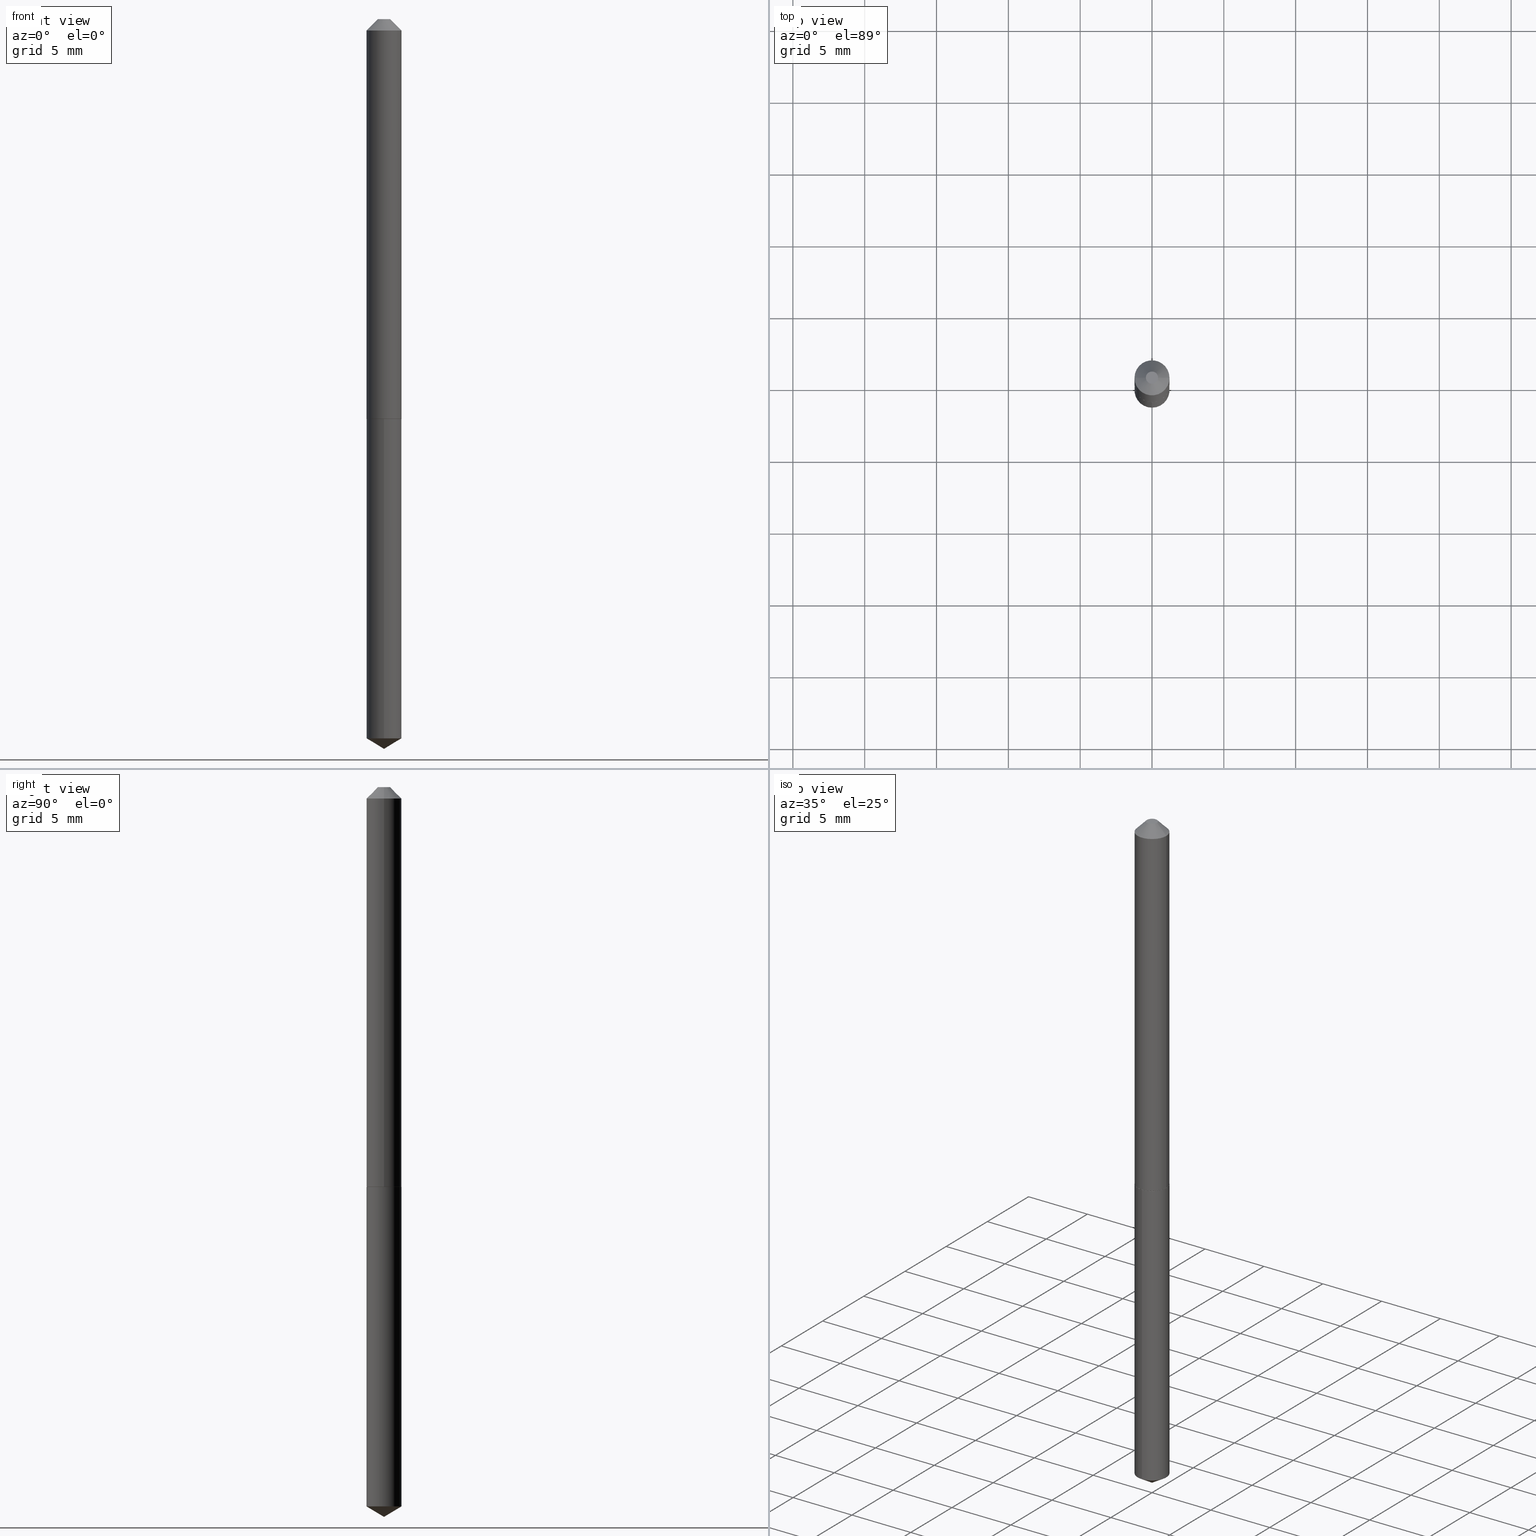
[diagram: canonical four-view strip — front | top / right | iso, engineering-drawing reading convention]
A machine part, canonical four-view strip (front | top / right | iso — engineering-drawing reading convention). The complete STEP part file that produces these views, byte-faithful:
ISO-10303-21;
HEADER;
FILE_DESCRIPTION (( 'STEP AP203' ),
    '1' );
FILE_NAME ('51041.STEP',
    '2024-04-22T18:17:20',
    ( '' ),
    ( '' ),
    'SwSTEP 2.0',
    'SolidWorks 2023',
    '' );
FILE_SCHEMA (( 'CONFIG_CONTROL_DESIGN' ));
ENDSEC;

DATA;
#1 = ORIENTED_EDGE ( 'NONE', *, *, #66, .F. ) ;
#2 = EDGE_LOOP ( 'NONE', ( #107, #1 ) ) ;
#3 = AXIS2_PLACEMENT_3D ( 'NONE', #137, #255, #256 ) ;
#4 = CC_DESIGN_PERSON_AND_ORGANIZATION_ASSIGNMENT ( #359, #218, ( #208 ) ) ;
#5 = VERTEX_POINT ( 'NONE', #220 ) ;
#6 = VERTEX_POINT ( 'NONE', #305 ) ;
#7 = CARTESIAN_POINT ( 'NONE',  ( 4.890904656076488180E-29, -6.983009872974747013E-15, -2.000000000000000000 ) ) ;
#8 = ORIENTED_EDGE ( 'NONE', *, *, #355, .T. ) ;
#9 = LINE ( 'NONE', #278, #253 ) ;
#10 = ORIENTED_EDGE ( 'NONE', *, *, #54, .F. ) ;
#11 = EDGE_CURVE ( 'NONE', #342, #301, #97, .T. ) ;
#12 = EDGE_CURVE ( 'NONE', #5, #192, #240, .T. ) ;
#13 = DIRECTION ( 'NONE',  ( 0.7071067811865897612, -2.468850131082699217E-15, 0.7071067811865052732 ) ) ;
#14 = ADVANCED_FACE ( 'NONE', ( #251 ), #271, .T. ) ;
#15 = PRODUCT ( '51041', '51041', '', ( #153 ) ) ;
#16 = DIRECTION ( 'NONE',  ( -6.982962677686264344E-15, -1.000000000000000000, 3.468864327941585142E-15 ) ) ;
#17 = CARTESIAN_POINT ( 'NONE',  ( -0.04800000000000000794, -1.625952786105907668E-15, -0.03125000000000020123 ) ) ;
#18 =( LENGTH_UNIT ( ) NAMED_UNIT ( * ) SI_UNIT ( $, .METRE. ) );
#19 = CARTESIAN_POINT ( 'NONE',  ( -9.138672799404161361E-28, 1.304778402611997727E-13, 37.37007874015748143 ) ) ;
#20 = VECTOR ( 'NONE', #337, 39.37007874015748143 ) ;
#21 = FACE_OUTER_BOUND ( 'NONE', #2, .T. ) ;
#22 = DIMENSIONAL_EXPONENTS ( 1.000000000000000000, 0.000000000000000000, 0.000000000000000000, 0.000000000000000000, 0.000000000000000000, 0.000000000000000000, 0.000000000000000000 ) ;
#23 = PERSON_AND_ORGANIZATION_ROLE ( 'design_owner' ) ;
#24 = CC_DESIGN_DATE_AND_TIME_ASSIGNMENT ( #84, #168, ( #323 ) ) ;
#25 = EDGE_CURVE ( 'NONE', #6, #5, #221, .T. ) ;
#26 = ADVANCED_FACE ( 'NONE', ( #79 ), #223, .T. ) ;
#27 = AXIS2_PLACEMENT_3D ( 'NONE', #382, #82, #202 ) ;
#28 = LOCAL_TIME ( 14, 17, 20.00000000000000000, #326 ) ;
#29 = CALENDAR_DATE ( 2024, 22, 4 ) ;
#30 = COORDINATED_UNIVERSAL_TIME_OFFSET ( 5, 0, .BEHIND. ) ;
#31 = APPLICATION_PROTOCOL_DEFINITION ( 'international standard', 'config_control_design', 1994, #181 ) ;
#32 = AXIS2_PLACEMENT_3D ( 'NONE', #250, #276, #371 ) ;
#33 = ORIENTED_EDGE ( 'NONE', *, *, #52, .T. ) ;
#34 = DIRECTION ( 'NONE',  ( -1.000000000000000000, 6.982962677686266711E-15, 0.000000000000000000 ) ) ;
#35 = CC_DESIGN_PERSON_AND_ORGANIZATION_ASSIGNMENT ( #267, #388, ( #208 ) ) ;
#36 = ADVANCED_FACE ( 'NONE', ( #335 ), #91, .T. ) ;
#37 = PERSON_AND_ORGANIZATION ( #49, #236 ) ;
#38 = ORIENTED_EDGE ( 'NONE', *, *, #11, .F. ) ;
#39 = DIRECTION ( 'NONE',  ( 1.000000000000000000, -6.982962677686265133E-15, 0.000000000000000000 ) ) ;
#40 = AXIS2_PLACEMENT_3D ( 'NONE', #19, #45, #16 ) ;
#41 = LOCAL_TIME ( 14, 17, 20.00000000000000000, #331 ) ;
#42 = LINE ( 'NONE', #169, #339 ) ;
#43 = CARTESIAN_POINT ( 'NONE',  ( 2.679011077175817397E-29, -3.824917806702665780E-15, -1.095499999999999918 ) ) ;
#44 = ADVANCED_FACE ( 'NONE', ( #316 ), #114, .T. ) ;
#45 = DIRECTION ( 'NONE',  ( -2.445452328038244090E-29, 3.491504936487373507E-15, 1.000000000000000000 ) ) ;
#46 = CARTESIAN_POINT ( 'NONE',  ( 0.04800000000000013284, -4.160100015231607087E-15, -1.095499999999999918 ) ) ;
#47 = CLOSED_SHELL ( 'NONE', ( #26, #124, #44, #154, #212 ) ) ;
#48 = CONICAL_SURFACE ( 'NONE', #40, 65.52281426576860213, 1.029744258676655644 ) ;
#49 = PERSON ( 'UNSPECIFIED', 'UNSPECIFIED', 'UNSPECIFIED', ('UNSPECIFIED'), ('UNSPECIFIED'), ('UNSPECIFIED') ) ;
#50 = APPROVAL_PERSON_ORGANIZATION ( #120, #112, #121 ) ;
#51 = CYLINDRICAL_SURFACE ( 'NONE', #319, 0.04800000000000007733 ) ;
#52 = EDGE_CURVE ( 'NONE', #254, #332, #191, .T. ) ;
#53 = DIRECTION ( 'NONE',  ( 1.000000000000000000, 0.000000000000000000, 0.000000000000000000 ) ) ;
#54 = EDGE_CURVE ( 'NONE', #332, #301, #211, .T. ) ;
#55 = DIRECTION ( 'NONE',  ( -2.445468806185136597E-29, 3.491481338843145583E-15, 1.000000000000000000 ) ) ;
#56 = CARTESIAN_POINT ( 'NONE',  ( -9.138672799404161361E-28, 1.304778402611997727E-13, 37.37007874015748143 ) ) ;
#57 = AXIS2_PLACEMENT_3D ( 'NONE', #282, #311, #320 ) ;
#58 = CARTESIAN_POINT ( 'NONE',  ( -0.04800000000000007733, 3.410605131648486387E-16, -2.361088843322358304E-30 ) ) ;
#59 = DIRECTION ( 'NONE',  ( -6.982962677686264344E-15, -1.000000000000000000, 3.468864327941585142E-15 ) ) ;
#60 = MANIFOLD_SOLID_BREP ( 'Body-Move/Copy2[1]', #47 ) ;
#61 = CALENDAR_DATE ( 2024, 22, 4 ) ;
#62 = ORIENTED_EDGE ( 'NONE', *, *, #344, .T. ) ;
#63 = DIRECTION ( 'NONE',  ( -1.000000000000000000, 6.982962677686265922E-15, -4.876176775795935793E-29 ) ) ;
#64 = CIRCLE ( 'NONE', #280, 0.04800000000000000794 ) ;
#65 = PERSON_AND_ORGANIZATION_ROLE ( 'classification_officer' ) ;
#66 = EDGE_CURVE ( 'NONE', #101, #132, #257, .T. ) ;
#67 = DIRECTION ( 'NONE',  ( -2.445468806185136597E-29, 3.491481338843145583E-15, 1.000000000000000000 ) ) ;
#68 = CALENDAR_DATE ( 2024, 22, 4 ) ;
#69 = ORIENTED_EDGE ( 'NONE', *, *, #377, .T. ) ;
#70 = ORIENTED_EDGE ( 'NONE', *, *, #324, .F. ) ;
#71 = ORIENTED_EDGE ( 'NONE', *, *, #249, .F. ) ;
#72 = CARTESIAN_POINT ( 'NONE',  ( -0.04750000000000004219, -3.486506520711928195E-15, -1.096000000000000085 ) ) ;
#73 = CC_DESIGN_APPROVAL ( #112, ( #323 ) ) ;
#74 = LINE ( 'NONE', #281, #20 ) ;
#75 = CIRCLE ( 'NONE', #32, 0.04800000000000000100 ) ;
#76 = EDGE_CURVE ( 'NONE', #157, #187, #372, .T. ) ;
#77 = ORIENTED_EDGE ( 'NONE', *, *, #324, .T. ) ;
#78 = PLANE ( 'NONE',  #3 ) ;
#79 = FACE_OUTER_BOUND ( 'NONE', #134, .T. ) ;
#80 = CARTESIAN_POINT ( 'NONE',  ( 0.000000000000000000, 0.000000000000000000, 0.000000000000000000 ) ) ;
#81 = CALENDAR_DATE ( 2024, 22, 4 ) ;
#82 = DIRECTION ( 'NONE',  ( -2.445468806185136597E-29, 3.491481338843145583E-15, 1.000000000000000000 ) ) ;
#83 = CC_DESIGN_APPROVAL ( #204, ( #338 ) ) ;
#84 = DATE_AND_TIME ( #81, #28 ) ;
#85 = CC_DESIGN_PERSON_AND_ORGANIZATION_ASSIGNMENT ( #235, #23, ( #15 ) ) ;
#86 = EDGE_CURVE ( 'NONE', #187, #342, #87, .T. ) ;
#87 = LINE ( 'NONE', #150, #380 ) ;
#88 = CARTESIAN_POINT ( 'NONE',  ( 2.679011077175817397E-29, -3.824917806702665780E-15, -1.095499999999999918 ) ) ;
#89 = APPROVAL_STATUS ( 'not_yet_approved' ) ;
#90 = CARTESIAN_POINT ( 'NONE',  ( 3.410605131648963647E-16, 0.04799999999999617073, -1.096000000000000085 ) ) ;
#91 = CONICAL_SURFACE ( 'NONE', #313, 0.04800000000000013284, 0.7853981633975080090 ) ;
#92 = CARTESIAN_POINT ( 'NONE',  ( 0.04800000000000007733, -3.351822085289413070E-16, 2.340564852382052838E-30 ) ) ;
#93 = EDGE_LOOP ( 'NONE', ( #69, #225, #182, #10 ) ) ;
#94 = PLANE ( 'NONE',  #237 ) ;
#95 = PERSON_AND_ORGANIZATION ( #49, #236 ) ;
#96 = EDGE_CURVE ( 'NONE', #254, #342, #354, .T. ) ;
#97 = CIRCLE ( 'NONE', #308, 0.04800000000000000794 ) ;
#98 = VECTOR ( 'NONE', #102, 39.37007874015748143 ) ;
#99 = DATE_AND_TIME ( #68, #41 ) ;
#100 = ORIENTED_EDGE ( 'NONE', *, *, #232, .T. ) ;
#101 = VERTEX_POINT ( 'NONE', #72 ) ;
#102 = DIRECTION ( 'NONE',  ( 0.7071067811865453523, -7.319954787623248157E-15, -0.7071067811865496822 ) ) ;
#103 = ORIENTED_EDGE ( 'NONE', *, *, #25, .F. ) ;
#104 = EDGE_LOOP ( 'NONE', ( #200, #390, #244, #325 ) ) ;
#105 = LINE ( 'NONE', #7, #138 ) ;
#106 = DIRECTION ( 'NONE',  ( -6.982962677686265922E-15, -1.000000000000000000, 5.691349986800547879E-15 ) ) ;
#107 = ORIENTED_EDGE ( 'NONE', *, *, #222, .F. ) ;
#108 = DIRECTION ( 'NONE',  ( -0.7071067811865897612, 7.493145998870507199E-15, 0.7071067811865052732 ) ) ;
#109 = FACE_OUTER_BOUND ( 'NONE', #215, .T. ) ;
#110 = DIRECTION ( 'NONE',  ( -2.445452328038244090E-29, 3.491504936487373507E-15, 1.000000000000000000 ) ) ;
#111 = DESIGN_CONTEXT ( 'detailed design', #263, 'design' ) ;
#112 = APPROVAL ( #352, 'UNSPECIFIED' ) ;
#113 = DIRECTION ( 'NONE',  ( -2.445468806185136597E-29, 3.491481338843145583E-15, 1.000000000000000000 ) ) ;
#114 = CONICAL_SURFACE ( 'NONE', #228, 65.52281426576860213, 1.029744258676655644 ) ;
#115 = DIRECTION ( 'NONE',  ( -1.000000000000000000, 6.982962677686266711E-15, 0.000000000000000000 ) ) ;
#116 = ADVANCED_FACE ( 'NONE', ( #155 ), #94, .F. ) ;
#117 = DIRECTION ( 'NONE',  ( 2.445468806185136597E-29, -3.491481338843145583E-15, -1.000000000000000000 ) ) ;
#118 = CIRCLE ( 'NONE', #309, 0.04800000000000013284 ) ;
#119 = DIRECTION ( 'NONE',  ( -6.982962677686265922E-15, -1.000000000000000000, 2.845674993400273939E-15 ) ) ;
#120 = PERSON_AND_ORGANIZATION ( #49, #236 ) ;
#121 = APPROVAL_ROLE ( '' ) ;
#122 = APPROVAL_DATE_TIME ( #151, #112 ) ;
#123 = ADVANCED_FACE ( 'NONE', ( #379 ), #302, .T. ) ;
#124 = ADVANCED_FACE ( 'NONE', ( #224 ), #48, .T. ) ;
#125 = SECURITY_CLASSIFICATION_LEVEL ( 'unclassified' ) ;
#126 = APPROVAL_ROLE ( '' ) ;
#127 = AXIS2_PLACEMENT_3D ( 'NONE', #384, #149, #53 ) ;
#128 = DIRECTION ( 'NONE',  ( -2.445452328038244090E-29, 3.491504936487373507E-15, 1.000000000000000000 ) ) ;
#129 = DIRECTION ( 'NONE',  ( 2.438088387897960049E-29, -3.491481338843145188E-15, -1.000000000000000000 ) ) ;
#130 = CONICAL_SURFACE ( 'NONE', #361, 0.04800000000000000794, 0.7853981633974452814 ) ;
#131 = EDGE_LOOP ( 'NONE', ( #300, #272 ) ) ;
#132 = VERTEX_POINT ( 'NONE', #205 ) ;
#133 = ORIENTED_EDGE ( 'NONE', *, *, #76, .F. ) ;
#134 = EDGE_LOOP ( 'NONE', ( #340, #214, #184, #70 ) ) ;
#135 = ORIENTED_EDGE ( 'NONE', *, *, #86, .T. ) ;
#136 = CARTESIAN_POINT ( 'NONE',  ( 3.410605131648748190E-16, 0.04799999999999617073, -1.096000000000000085 ) ) ;
#137 = CARTESIAN_POINT ( 'NONE',  ( 2.680233811578909638E-29, -3.826663547372087284E-15, -1.096000000000000085 ) ) ;
#138 = VECTOR ( 'NONE', #226, 39.37007874015748143 ) ;
#139 = CARTESIAN_POINT ( 'NONE',  ( 7.642090019328601786E-31, -1.091087918388490144E-16, -0.03125000000000020123 ) ) ;
#140 = UNCERTAINTY_MEASURE_WITH_UNIT (LENGTH_MEASURE( 1.000000000000000082E-05 ), #347, 'distance_accuracy_value', 'NONE');
#141 = AXIS2_PLACEMENT_3D ( 'NONE', #207, #231, #349 ) ;
#142 = ADVANCED_FACE ( 'NONE', ( #348 ), #130, .T. ) ;
#143 = CC_DESIGN_PERSON_AND_ORGANIZATION_ASSIGNMENT ( #356, #180, ( #323 ) ) ;
#144 = CARTESIAN_POINT ( 'NONE',  ( 2.679011077175817397E-29, -3.824917806702665780E-15, -1.095499999999999918 ) ) ;
#145 = DIRECTION ( 'NONE',  ( -2.445452328038244090E-29, 3.491504936487373507E-15, 1.000000000000000000 ) ) ;
#146 = VECTOR ( 'NONE', #328, 39.37007874015748143 ) ;
#147 = AXIS2_PLACEMENT_3D ( 'NONE', #360, #296, #34 ) ;
#148 = CIRCLE ( 'NONE', #350, 0.04750000000000004219 ) ;
#149 = DIRECTION ( 'NONE',  ( 0.000000000000000000, 0.000000000000000000, 1.000000000000000000 ) ) ;
#150 = CARTESIAN_POINT ( 'NONE',  ( -0.04800000000000000794, 2.260734166900918612E-16, -0.03125000000000020123 ) ) ;
#151 = DATE_AND_TIME ( #29, #193 ) ;
#152 = AXIS2_PLACEMENT_3D ( 'NONE', #291, #264, #358 ) ;
#153 = MECHANICAL_CONTEXT ( 'NONE', #181, 'mechanical' ) ;
#154 = ADVANCED_FACE ( 'NONE', ( #174 ), #230, .T. ) ;
#155 = FACE_OUTER_BOUND ( 'NONE', #131, .T. ) ;
#156 = ADVANCED_FACE ( 'NONE', ( #21 ), #233, .F. ) ;
#157 = VERTEX_POINT ( 'NONE', #351 ) ;
#158 = EDGE_LOOP ( 'NONE', ( #367, #336, #135, #248 ) ) ;
#159 = APPROVAL_STATUS ( 'not_yet_approved' ) ;
#160 = DIRECTION ( 'NONE',  ( 1.000000000000000000, -6.982962677686266711E-15, 0.000000000000000000 ) ) ;
#161 = CARTESIAN_POINT ( 'NONE',  ( 0.04800000000000000794, -4.384126957318825829E-16, -0.03125000000000020123 ) ) ;
#162 = VERTEX_POINT ( 'NONE', #289 ) ;
#163 = AXIS2_PLACEMENT_3D ( 'NONE', #370, #185, #164 ) ;
#164 = DIRECTION ( 'NONE',  ( 1.000000000000000000, -6.982962677686265133E-15, 0.000000000000000000 ) ) ;
#165 = EDGE_LOOP ( 'NONE', ( #247, #369, #389, #334 ) ) ;
#166 = FACE_OUTER_BOUND ( 'NONE', #93, .T. ) ;
#167 = CARTESIAN_POINT ( 'NONE',  ( 7.642090019328601786E-31, -1.091087918388490144E-16, -0.03125000000000020123 ) ) ;
#168 = DATE_TIME_ROLE ( 'creation_date' ) ;
#169 = CARTESIAN_POINT ( 'NONE',  ( -0.04800000000000013284, -3.483857293537816599E-15, -1.095499999999999918 ) ) ;
#170 = AXIS2_PLACEMENT_3D ( 'NONE', #269, #128, #106 ) ;
#171 = DIRECTION ( 'NONE',  ( 1.000000000000000000, -6.982962677686265922E-15, 4.876176775795935793E-29 ) ) ;
#172 = DIRECTION ( 'NONE',  ( -6.982962677686265922E-15, -1.000000000000000000, 2.845674993400273939E-15 ) ) ;
#173 = DIRECTION ( 'NONE',  ( 1.000000000000000000, -6.982962677686262766E-15, 0.000000000000000000 ) ) ;
#174 = FACE_OUTER_BOUND ( 'NONE', #246, .T. ) ;
#175 = DIRECTION ( 'NONE',  ( 1.000000000000000000, -6.982962677686262766E-15, 0.000000000000000000 ) ) ;
#176 = APPLICATION_PROTOCOL_DEFINITION ( 'international standard', 'config_control_design', 1994, #263 ) ;
#177 = AXIS2_PLACEMENT_3D ( 'NONE', #206, #145, #172 ) ;
#178 = COORDINATED_UNIVERSAL_TIME_OFFSET ( 5, 0, .BEHIND. ) ;
#179 = FACE_OUTER_BOUND ( 'NONE', #364, .T. ) ;
#180 = PERSON_AND_ORGANIZATION_ROLE ( 'creator' ) ;
#181 = APPLICATION_CONTEXT ( 'configuration controlled 3d designs of mechanical parts and assemblies' ) ;
#182 = ORIENTED_EDGE ( 'NONE', *, *, #344, .F. ) ;
#183 = VECTOR ( 'NONE', #110, 39.37007874015748143 ) ;
#184 = ORIENTED_EDGE ( 'NONE', *, *, #199, .F. ) ;
#185 = DIRECTION ( 'NONE',  ( -2.445468806185136597E-29, 3.491481338843145583E-15, 1.000000000000000000 ) ) ;
#186 = LINE ( 'NONE', #161, #98 ) ;
#187 = VERTEX_POINT ( 'NONE', #234 ) ;
#188 = ORIENTED_EDGE ( 'NONE', *, *, #199, .T. ) ;
#189 = CARTESIAN_POINT ( 'NONE',  ( -3.351822085289139434E-16, -0.04800000000000382433, -1.095999999999999863 ) ) ;
#190 = ORIENTED_EDGE ( 'NONE', *, *, #249, .T. ) ;
#191 = CIRCLE ( 'NONE', #152, 0.04800000000000013284 ) ;
#192 = VERTEX_POINT ( 'NONE', #90 ) ;
#193 = LOCAL_TIME ( 14, 17, 20.00000000000000000, #178 ) ;
#194 = ORIENTED_EDGE ( 'NONE', *, *, #12, .F. ) ;
#195 = CARTESIAN_POINT ( 'NONE',  ( 2.680233811578909638E-29, -3.826663547372087284E-15, -1.096000000000000085 ) ) ;
#196 = PRODUCT_RELATED_PRODUCT_CATEGORY ( 'detail', '', ( #15 ) ) ;
#197 = DIRECTION ( 'NONE',  ( -6.982962677686265922E-15, -1.000000000000000000, 2.845674993400273939E-15 ) ) ;
#198 = EDGE_CURVE ( 'NONE', #192, #375, #346, .T. ) ;
#199 = EDGE_CURVE ( 'NONE', #375, #192, #357, .T. ) ;
#200 = ORIENTED_EDGE ( 'NONE', *, *, #222, .T. ) ;
#201 = LINE ( 'NONE', #307, #183 ) ;
#202 = DIRECTION ( 'NONE',  ( 1.000000000000000000, -6.982962677686266711E-15, 4.876219677916620331E-29 ) ) ;
#203 = APPROVAL_PERSON_ORGANIZATION ( #279, #259, #126 ) ;
#204 = APPROVAL ( #89, 'UNSPECIFIED' ) ;
#205 = CARTESIAN_POINT ( 'NONE',  ( 0.04750000000000004219, -4.158354274562185584E-15, -1.096000000000000085 ) ) ;
#206 = CARTESIAN_POINT ( 'NONE',  ( 2.680233811578909638E-29, -3.826663547372087284E-15, -1.096000000000000085 ) ) ;
#207 = CARTESIAN_POINT ( 'NONE',  ( 2.680233811578909638E-29, -3.826663547372087284E-15, -1.096000000000000085 ) ) ;
#208 = PRODUCT_DEFINITION_FORMATION_WITH_SPECIFIED_SOURCE ( 'ANY', '', #15, .NOT_KNOWN. ) ;
#209 = CLOSED_SHELL ( 'NONE', ( #142, #268, #123, #156, #36, #387, #14, #116 ) ) ;
#210 = ADVANCED_BREP_SHAPE_REPRESENTATION ( '51041', ( #60, #312, #127 ), #304 ) ;
#211 = LINE ( 'NONE', #92, #293 ) ;
#212 = ADVANCED_FACE ( 'NONE', ( #179 ), #78, .F. ) ;
#213 = DATE_AND_TIME ( #61, #317 ) ;
#214 = ORIENTED_EDGE ( 'NONE', *, *, #12, .T. ) ;
#215 = EDGE_LOOP ( 'NONE', ( #333, #33, #363, #38 ) ) ;
#216 = AXIS2_PLACEMENT_3D ( 'NONE', #80, #376, #365 ) ;
#217 = EDGE_LOOP ( 'NONE', ( #274, #100, #103 ) ) ;
#218 = PERSON_AND_ORGANIZATION_ROLE ( 'creator' ) ;
#219 = APPROVAL_DATE_TIME ( #99, #259 ) ;
#220 = CARTESIAN_POINT ( 'NONE',  ( 3.410605131648963647E-16, 0.04799999999999312456, -1.971158690286677340 ) ) ;
#221 = CIRCLE ( 'NONE', #170, 0.04800000000000000100 ) ;
#222 = EDGE_CURVE ( 'NONE', #132, #101, #148, .T. ) ;
#223 = CYLINDRICAL_SURFACE ( 'NONE', #265, 0.04800000000000000100 ) ;
#224 = FACE_OUTER_BOUND ( 'NONE', #217, .T. ) ;
#225 = ORIENTED_EDGE ( 'NONE', *, *, #96, .T. ) ;
#226 = DIRECTION ( 'NONE',  ( -5.985567269335947590E-15, -0.8571673007021111124, 0.5150380749100561539 ) ) ;
#227 = CC_DESIGN_SECURITY_CLASSIFICATION ( #338, ( #208 ) ) ;
#228 = AXIS2_PLACEMENT_3D ( 'NONE', #56, #318, #59 ) ;
#229 = DIRECTION ( 'NONE',  ( -2.445468806185136597E-29, 3.491481338843145583E-15, 1.000000000000000000 ) ) ;
#230 = CYLINDRICAL_SURFACE ( 'NONE', #242, 0.04800000000000000100 ) ;
#231 = DIRECTION ( 'NONE',  ( -2.438088387897960049E-29, 3.491481338843145188E-15, 1.000000000000000000 ) ) ;
#232 = EDGE_CURVE ( 'NONE', #162, #5, #74, .T. ) ;
#233 = PLANE ( 'NONE',  #141 ) ;
#234 = CARTESIAN_POINT ( 'NONE',  ( -0.01675000000000000100, 1.715190207706684202E-16, -1.224646799157442850E-19 ) ) ;
#235 = PERSON_AND_ORGANIZATION ( #49, #236 ) ;
#236 = ORGANIZATION ( 'UNSPECIFIED', 'UNSPECIFIED', '' ) ;
#237 = AXIS2_PLACEMENT_3D ( 'NONE', #266, #129, #63 ) ;
#238 =( NAMED_UNIT ( * ) SI_UNIT ( $, .STERADIAN. ) SOLID_ANGLE_UNIT ( ) );
#239 = CALENDAR_DATE ( 2024, 22, 4 ) ;
#240 = LINE ( 'NONE', #136, #146 ) ;
#241 = COORDINATED_UNIVERSAL_TIME_OFFSET ( 5, 0, .BEHIND. ) ;
#242 = AXIS2_PLACEMENT_3D ( 'NONE', #383, #287, #119 ) ;
#243 = CC_DESIGN_APPROVAL ( #259, ( #208 ) ) ;
#244 = ORIENTED_EDGE ( 'NONE', *, *, #377, .F. ) ;
#245 = DIRECTION ( 'NONE',  ( -2.445468806185136597E-29, 3.491481338843145583E-15, 1.000000000000000000 ) ) ;
#246 = EDGE_LOOP ( 'NONE', ( #194, #190, #77, #297 ) ) ;
#247 = ORIENTED_EDGE ( 'NONE', *, *, #261, .F. ) ;
#248 = ORIENTED_EDGE ( 'NONE', *, *, #11, .T. ) ;
#249 = EDGE_CURVE ( 'NONE', #5, #6, #75, .T. ) ;
#250 = CARTESIAN_POINT ( 'NONE',  ( 4.820392668143365381E-29, -6.882284434717845235E-15, -1.971158690286677118 ) ) ;
#251 = FACE_OUTER_BOUND ( 'NONE', #158, .T. ) ;
#252 = DIRECTION ( 'NONE',  ( -2.445468806185136597E-29, 3.491481338843145583E-15, 1.000000000000000000 ) ) ;
#253 = VECTOR ( 'NONE', #13, 39.37007874015748143 ) ;
#254 = VERTEX_POINT ( 'NONE', #306 ) ;
#255 = DIRECTION ( 'NONE',  ( 2.445452328038243810E-29, -3.491504936487373507E-15, -1.000000000000000000 ) ) ;
#256 = DIRECTION ( 'NONE',  ( 6.982962677686265922E-15, 1.000000000000000000, -3.491504936487373507E-15 ) ) ;
#257 = CIRCLE ( 'NONE', #163, 0.04750000000000004219 ) ;
#258 =( NAMED_UNIT ( * ) PLANE_ANGLE_UNIT ( ) SI_UNIT ( $, .RADIAN. ) );
#259 = APPROVAL ( #159, 'UNSPECIFIED' ) ;
#260 = EDGE_CURVE ( 'NONE', #187, #157, #262, .T. ) ;
#261 = EDGE_CURVE ( 'NONE', #101, #254, #42, .T. ) ;
#262 = CIRCLE ( 'NONE', #286, 0.01674999999999999753 ) ;
#263 = APPLICATION_CONTEXT ( 'configuration controlled 3d designs of mechanical parts and assemblies' ) ;
#264 = DIRECTION ( 'NONE',  ( -2.445468806185136597E-29, 3.491481338843145583E-15, 1.000000000000000000 ) ) ;
#265 = AXIS2_PLACEMENT_3D ( 'NONE', #341, #373, #197 ) ;
#266 = CARTESIAN_POINT ( 'NONE',  ( 1.497417772954669407E-48, -2.137915722948495711E-34, -6.123233995736790996E-20 ) ) ;
#267 = PERSON_AND_ORGANIZATION ( #49, #236 ) ;
#268 = ADVANCED_FACE ( 'NONE', ( #166 ), #368, .T. ) ;
#269 = CARTESIAN_POINT ( 'NONE',  ( 4.820392668143365381E-29, -6.882284434717845235E-15, -1.971158690286677118 ) ) ;
#270 = SHAPE_DEFINITION_REPRESENTATION ( #374, #210 ) ;
#271 = CONICAL_SURFACE ( 'NONE', #147, 0.04800000000000000794, 0.7853981633974452814 ) ;
#272 = ORIENTED_EDGE ( 'NONE', *, *, #76, .T. ) ;
#273 = DIRECTION ( 'NONE',  ( -2.445468806185136597E-29, 3.491481338843145583E-15, 1.000000000000000000 ) ) ;
#274 = ORIENTED_EDGE ( 'NONE', *, *, #295, .F. ) ;
#275 = EDGE_LOOP ( 'NONE', ( #133, #8, #62, #284 ) ) ;
#276 = DIRECTION ( 'NONE',  ( -2.445452328038244090E-29, 3.491504936487373507E-15, 1.000000000000000000 ) ) ;
#277 = DIRECTION ( 'NONE',  ( -2.445468806185136597E-29, 3.491481338843145583E-15, 1.000000000000000000 ) ) ;
#278 = CARTESIAN_POINT ( 'NONE',  ( 0.04800000000000013284, -4.160100015231607087E-15, -1.095499999999999918 ) ) ;
#279 = PERSON_AND_ORGANIZATION ( #49, #236 ) ;
#280 = AXIS2_PLACEMENT_3D ( 'NONE', #139, #67, #378 ) ;
#281 = CARTESIAN_POINT ( 'NONE',  ( 4.890941092905099340E-29, -6.982958146938599360E-15, -2.000000000000000000 ) ) ;
#282 = CARTESIAN_POINT ( 'NONE',  ( 2.680233811578909638E-29, -3.826663547372087284E-15, -1.096000000000000085 ) ) ;
#283 = EDGE_CURVE ( 'NONE', #132, #332, #9, .T. ) ;
#284 = ORIENTED_EDGE ( 'NONE', *, *, #86, .F. ) ;
#285 = DIRECTION ( 'NONE',  ( 1.000000000000000000, -6.982962677686262766E-15, 0.000000000000000000 ) ) ;
#286 = AXIS2_PLACEMENT_3D ( 'NONE', #298, #273, #330 ) ;
#287 = DIRECTION ( 'NONE',  ( -2.445452328038244090E-29, 3.491504936487373507E-15, 1.000000000000000000 ) ) ;
#288 = LENGTH_MEASURE_WITH_UNIT ( LENGTH_MEASURE( 0.02539999999999999897 ), #18 );
#289 = CARTESIAN_POINT ( 'NONE',  ( 4.890904656076488180E-29, -6.983009872974747013E-15, -2.000000000000000000 ) ) ;
#290 = AXIS2_PLACEMENT_3D ( 'NONE', #43, #252, #173 ) ;
#291 = CARTESIAN_POINT ( 'NONE',  ( 2.679011077175817397E-29, -3.824917806702665780E-15, -1.095499999999999918 ) ) ;
#292 = CARTESIAN_POINT ( 'NONE',  ( 7.642090019328601786E-31, -1.091087918388490144E-16, -0.03125000000000020123 ) ) ;
#293 = VECTOR ( 'NONE', #321, 39.37007874015748143 ) ;
#294 = EDGE_LOOP ( 'NONE', ( #303, #329, #71 ) ) ;
#295 = EDGE_CURVE ( 'NONE', #162, #6, #105, .T. ) ;
#296 = DIRECTION ( 'NONE',  ( 2.445468806185136597E-29, -3.491481338843145583E-15, -1.000000000000000000 ) ) ;
#297 = ORIENTED_EDGE ( 'NONE', *, *, #198, .F. ) ;
#298 = CARTESIAN_POINT ( 'NONE',  ( 2.994835545909338814E-48, -4.275831445896991422E-34, -1.224646799147358199E-19 ) ) ;
#299 = APPROVAL_DATE_TIME ( #213, #204 ) ;
#300 = ORIENTED_EDGE ( 'NONE', *, *, #260, .T. ) ;
#301 = VERTEX_POINT ( 'NONE', #343 ) ;
#302 = CONICAL_SURFACE ( 'NONE', #290, 0.04800000000000013284, 0.7853981633975080090 ) ;
#303 = ORIENTED_EDGE ( 'NONE', *, *, #232, .F. ) ;
#304 =( GEOMETRIC_REPRESENTATION_CONTEXT ( 3 ) GLOBAL_UNCERTAINTY_ASSIGNED_CONTEXT ( ( #140 ) ) GLOBAL_UNIT_ASSIGNED_CONTEXT ( ( #347, #258, #238 ) ) REPRESENTATION_CONTEXT ( 'NONE', 'WORKASPACE' ) );
#305 = CARTESIAN_POINT ( 'NONE',  ( -3.351822085288925948E-16, -0.04800000000000689132, -1.971158690286676896 ) ) ;
#306 = CARTESIAN_POINT ( 'NONE',  ( -0.04800000000000013284, -3.483857293537816599E-15, -1.095499999999999918 ) ) ;
#307 = CARTESIAN_POINT ( 'NONE',  ( -3.351822085289139434E-16, -0.04800000000000382433, -1.095999999999999863 ) ) ;
#308 = AXIS2_PLACEMENT_3D ( 'NONE', #167, #277, #160 ) ;
#309 = AXIS2_PLACEMENT_3D ( 'NONE', #144, #229, #285 ) ;
#310 = CARTESIAN_POINT ( 'NONE',  ( 0.000000000000000000, 0.000000000000000000, 0.000000000000000000 ) ) ;
#311 = DIRECTION ( 'NONE',  ( -2.445452328038244090E-29, 3.491504936487373507E-15, 1.000000000000000000 ) ) ;
#312 = MANIFOLD_SOLID_BREP ( 'Body-Move/Copy2[2]', #209 ) ;
#313 = AXIS2_PLACEMENT_3D ( 'NONE', #88, #55, #175 ) ;
#314 = CC_DESIGN_DATE_AND_TIME_ASSIGNMENT ( #322, #327, ( #338 ) ) ;
#315 = DIRECTION ( 'NONE',  ( -0.7071067811865453523, 2.468850131082234184E-15, -0.7071067811865496822 ) ) ;
#316 = FACE_OUTER_BOUND ( 'NONE', #294, .T. ) ;
#317 = LOCAL_TIME ( 14, 17, 20.00000000000000000, #30 ) ;
#318 = DIRECTION ( 'NONE',  ( -2.445452328038244090E-29, 3.491504936487373507E-15, 1.000000000000000000 ) ) ;
#319 = AXIS2_PLACEMENT_3D ( 'NONE', #310, #113, #171 ) ;
#320 = DIRECTION ( 'NONE',  ( -6.982962677686265922E-15, -1.000000000000000000, 2.845674993400273939E-15 ) ) ;
#321 = DIRECTION ( 'NONE',  ( -2.445468806185136877E-29, 3.491481338843145188E-15, 1.000000000000000000 ) ) ;
#322 = DATE_AND_TIME ( #239, #345 ) ;
#323 = PRODUCT_DEFINITION ( 'UNKNOWN', '', #208, #111 ) ;
#324 = EDGE_CURVE ( 'NONE', #6, #375, #201, .T. ) ;
#325 = ORIENTED_EDGE ( 'NONE', *, *, #283, .F. ) ;
#326 = COORDINATED_UNIVERSAL_TIME_OFFSET ( 5, 0, .BEHIND. ) ;
#327 = DATE_TIME_ROLE ( 'classification_date' ) ;
#328 = DIRECTION ( 'NONE',  ( -2.445452328038244090E-29, 3.491504936487373507E-15, 1.000000000000000000 ) ) ;
#329 = ORIENTED_EDGE ( 'NONE', *, *, #295, .T. ) ;
#330 = DIRECTION ( 'NONE',  ( 1.000000000000000000, -6.982962677686266711E-15, 4.876219677916620331E-29 ) ) ;
#331 = COORDINATED_UNIVERSAL_TIME_OFFSET ( 5, 0, .BEHIND. ) ;
#332 = VERTEX_POINT ( 'NONE', #46 ) ;
#333 = ORIENTED_EDGE ( 'NONE', *, *, #96, .F. ) ;
#334 = ORIENTED_EDGE ( 'NONE', *, *, #52, .F. ) ;
#335 = FACE_OUTER_BOUND ( 'NONE', #165, .T. ) ;
#336 = ORIENTED_EDGE ( 'NONE', *, *, #260, .F. ) ;
#337 = DIRECTION ( 'NONE',  ( 6.090539988449784746E-15, 0.8571673007021146651, 0.5150380749100501587 ) ) ;
#338 = SECURITY_CLASSIFICATION ( '', '', #125 ) ;
#339 = VECTOR ( 'NONE', #108, 39.37007874015748143 ) ;
#340 = ORIENTED_EDGE ( 'NONE', *, *, #25, .T. ) ;
#341 = CARTESIAN_POINT ( 'NONE',  ( 2.680233811578909638E-29, -3.826663547372087284E-15, -1.096000000000000085 ) ) ;
#342 = VERTEX_POINT ( 'NONE', #17 ) ;
#343 = CARTESIAN_POINT ( 'NONE',  ( 0.04800000000000000794, -4.442910003677899146E-16, -0.03125000000000020123 ) ) ;
#344 = EDGE_CURVE ( 'NONE', #301, #342, #64, .T. ) ;
#345 = LOCAL_TIME ( 14, 17, 20.00000000000000000, #241 ) ;
#346 = CIRCLE ( 'NONE', #177, 0.04800000000000000100 ) ;
#347 =( CONVERSION_BASED_UNIT ( 'INCH', #288 ) LENGTH_UNIT ( ) NAMED_UNIT ( #22 ) );
#348 = FACE_OUTER_BOUND ( 'NONE', #275, .T. ) ;
#349 = DIRECTION ( 'NONE',  ( 1.000000000000000000, -6.982962677686265922E-15, 4.876176775795935793E-29 ) ) ;
#350 = AXIS2_PLACEMENT_3D ( 'NONE', #195, #245, #39 ) ;
#351 = CARTESIAN_POINT ( 'NONE',  ( 0.01675000000000000100, -2.766630185972779012E-16, -1.224646799133602245E-19 ) ) ;
#352 = APPROVAL_STATUS ( 'not_yet_approved' ) ;
#353 = CC_DESIGN_PERSON_AND_ORGANIZATION_ASSIGNMENT ( #37, #65, ( #338 ) ) ;
#354 = LINE ( 'NONE', #58, #385 ) ;
#355 = EDGE_CURVE ( 'NONE', #157, #301, #186, .T. ) ;
#356 = PERSON_AND_ORGANIZATION ( #49, #236 ) ;
#357 = CIRCLE ( 'NONE', #57, 0.04800000000000000100 ) ;
#358 = DIRECTION ( 'NONE',  ( 1.000000000000000000, -6.982962677686262766E-15, 0.000000000000000000 ) ) ;
#359 = PERSON_AND_ORGANIZATION ( #49, #236 ) ;
#360 = CARTESIAN_POINT ( 'NONE',  ( 7.642090019328601786E-31, -1.091087918388490144E-16, -0.03125000000000020123 ) ) ;
#361 = AXIS2_PLACEMENT_3D ( 'NONE', #292, #117, #115 ) ;
#362 = APPROVAL_ROLE ( '' ) ;
#363 = ORIENTED_EDGE ( 'NONE', *, *, #54, .T. ) ;
#364 = EDGE_LOOP ( 'NONE', ( #188, #366 ) ) ;
#365 = DIRECTION ( 'NONE',  ( 1.000000000000000000, -6.982962677686265922E-15, 4.876176775795935793E-29 ) ) ;
#366 = ORIENTED_EDGE ( 'NONE', *, *, #198, .T. ) ;
#367 = ORIENTED_EDGE ( 'NONE', *, *, #355, .F. ) ;
#368 = CYLINDRICAL_SURFACE ( 'NONE', #216, 0.04800000000000007733 ) ;
#369 = ORIENTED_EDGE ( 'NONE', *, *, #66, .T. ) ;
#370 = CARTESIAN_POINT ( 'NONE',  ( 2.680233811578909638E-29, -3.826663547372087284E-15, -1.096000000000000085 ) ) ;
#371 = DIRECTION ( 'NONE',  ( -6.982962677686265922E-15, -1.000000000000000000, 5.691349986800547879E-15 ) ) ;
#372 = CIRCLE ( 'NONE', #27, 0.01674999999999999753 ) ;
#373 = DIRECTION ( 'NONE',  ( -2.445452328038244090E-29, 3.491504936487373507E-15, 1.000000000000000000 ) ) ;
#374 = PRODUCT_DEFINITION_SHAPE ( 'NONE', 'NONE',  #323 ) ;
#375 = VERTEX_POINT ( 'NONE', #189 ) ;
#376 = DIRECTION ( 'NONE',  ( -2.445468806185136597E-29, 3.491481338843145583E-15, 1.000000000000000000 ) ) ;
#377 = EDGE_CURVE ( 'NONE', #332, #254, #118, .T. ) ;
#378 = DIRECTION ( 'NONE',  ( 1.000000000000000000, -6.982962677686266711E-15, 0.000000000000000000 ) ) ;
#379 = FACE_OUTER_BOUND ( 'NONE', #104, .T. ) ;
#380 = VECTOR ( 'NONE', #315, 39.37007874015748143 ) ;
#381 = APPROVAL_PERSON_ORGANIZATION ( #95, #204, #362 ) ;
#382 = CARTESIAN_POINT ( 'NONE',  ( 2.994835545909338814E-48, -4.275831445896991422E-34, -1.224646799147358199E-19 ) ) ;
#383 = CARTESIAN_POINT ( 'NONE',  ( 2.680233811578909638E-29, -3.826663547372087284E-15, -1.096000000000000085 ) ) ;
#384 = CARTESIAN_POINT ( 'NONE',  ( 0.000000000000000000, 0.000000000000000000, 0.000000000000000000 ) ) ;
#385 = VECTOR ( 'NONE', #386, 39.37007874015748143 ) ;
#386 = DIRECTION ( 'NONE',  ( -2.445468806185136877E-29, 3.491481338843145188E-15, 1.000000000000000000 ) ) ;
#387 = ADVANCED_FACE ( 'NONE', ( #109 ), #51, .T. ) ;
#388 = PERSON_AND_ORGANIZATION_ROLE ( 'design_supplier' ) ;
#389 = ORIENTED_EDGE ( 'NONE', *, *, #283, .T. ) ;
#390 = ORIENTED_EDGE ( 'NONE', *, *, #261, .T. ) ;
ENDSEC;
END-ISO-10303-21;
